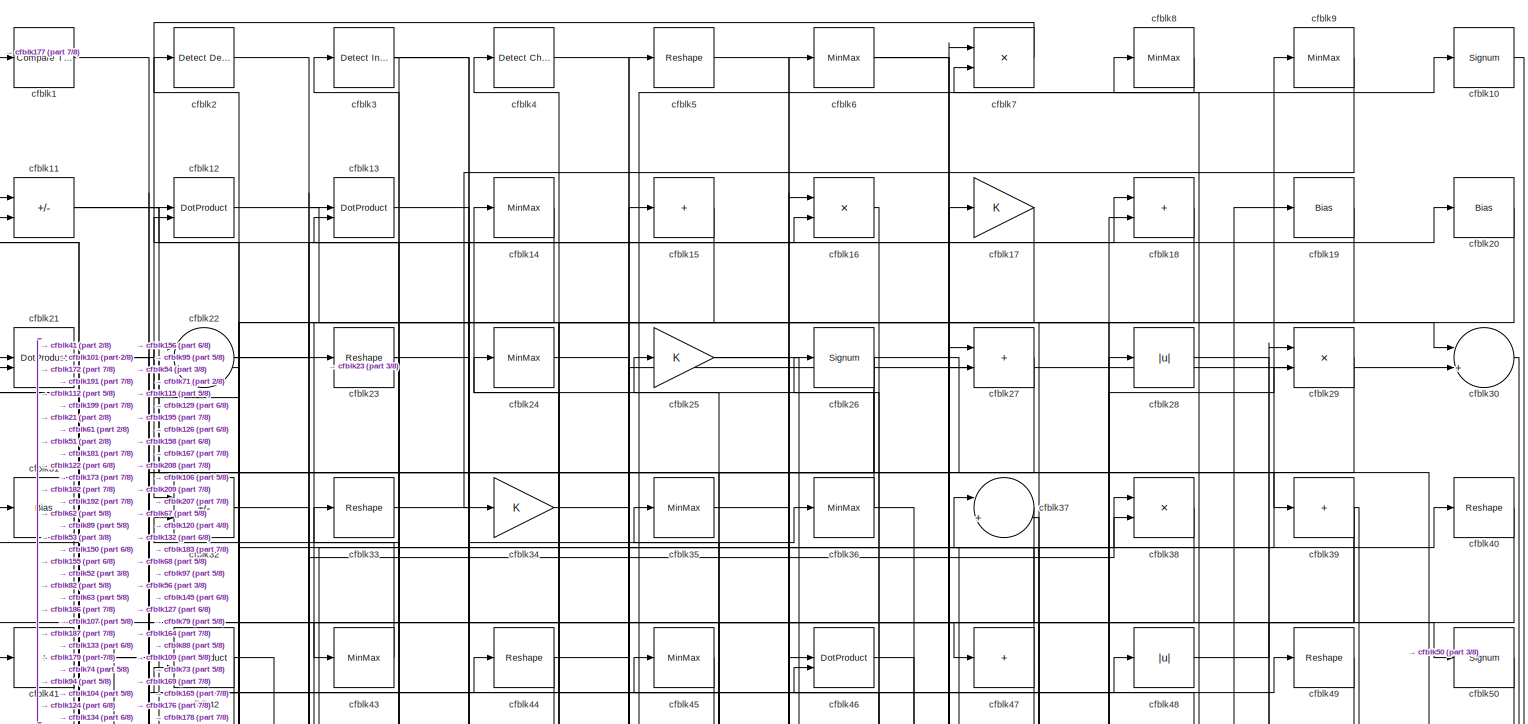
[diagram: root canvas - part 1/8, full width, top band]
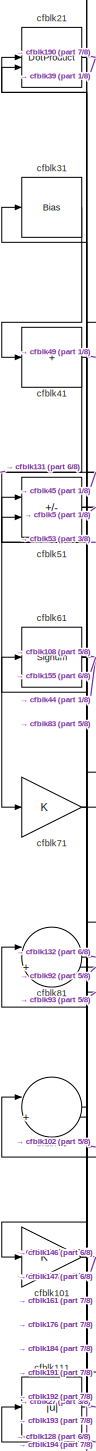
[diagram: root canvas - part 2/8, top left region]
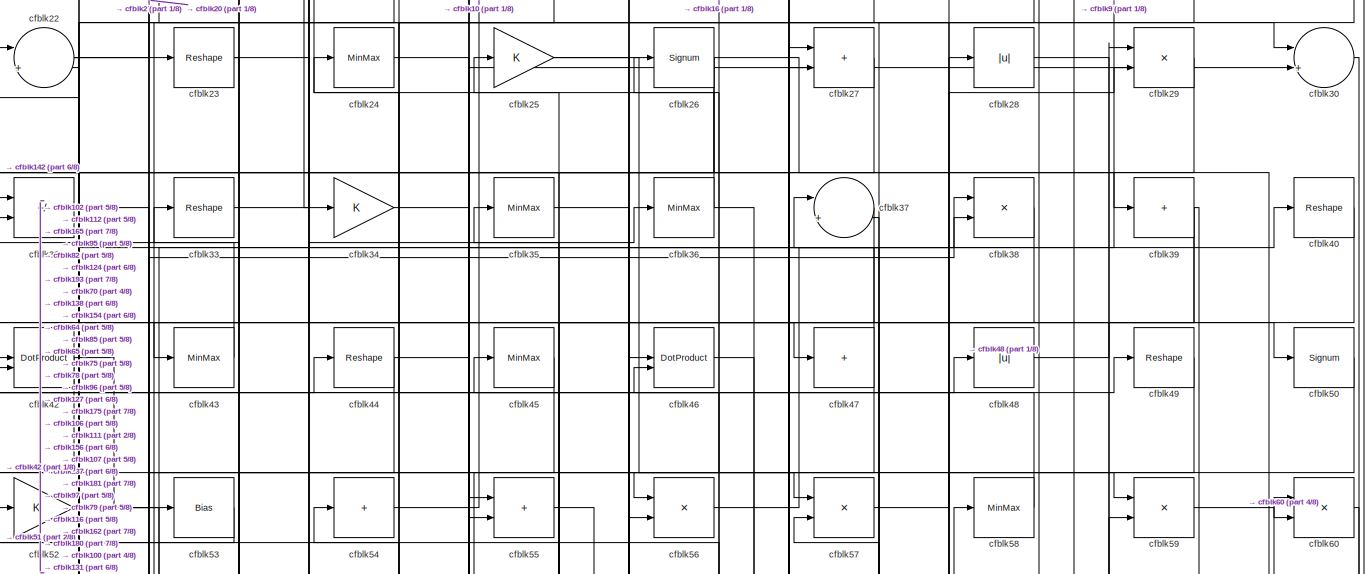
[diagram: root canvas - part 3/8, full width, top band]
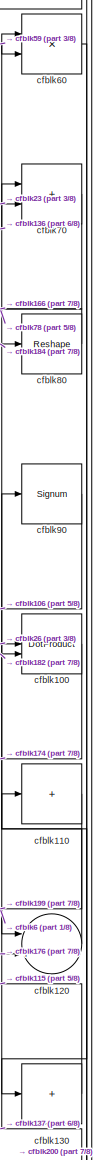
[diagram: root canvas - part 4/8, middle right region]
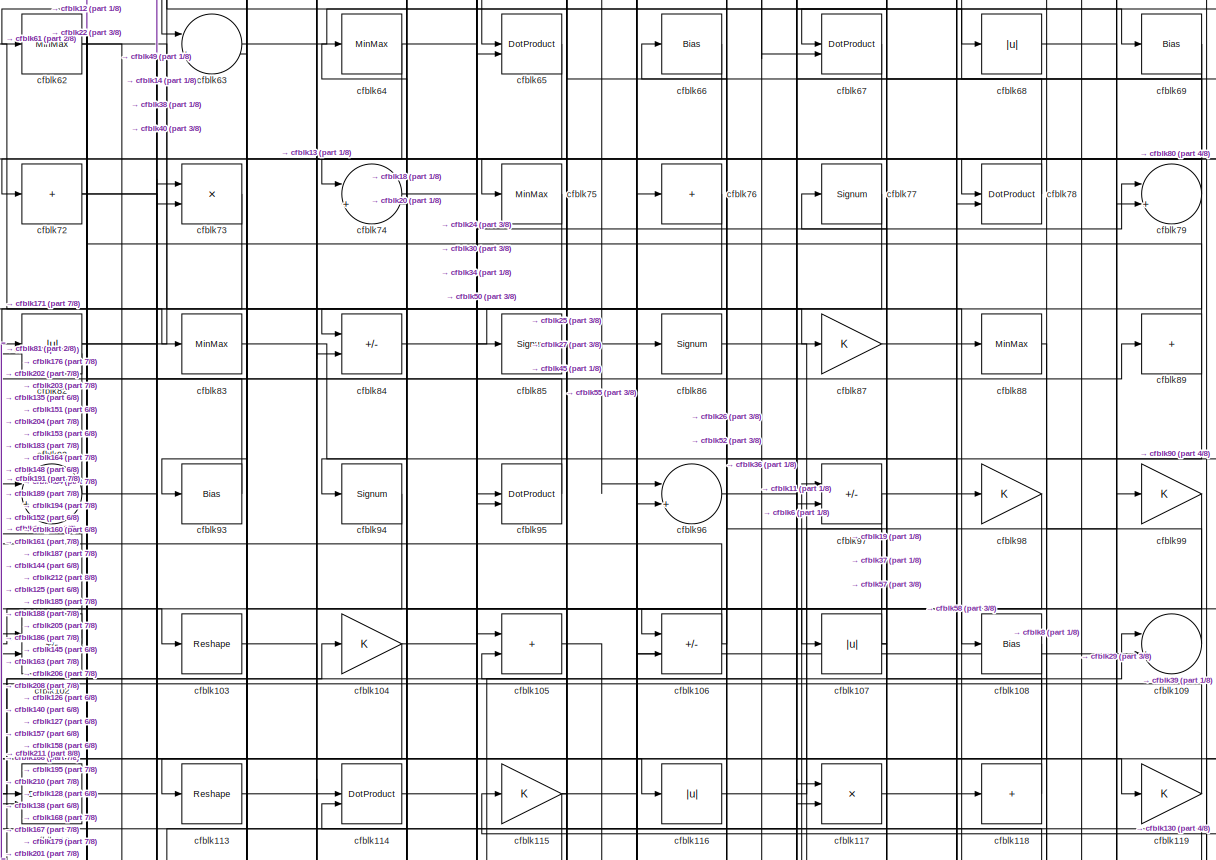
[diagram: root canvas - part 5/8, full width, middle band]
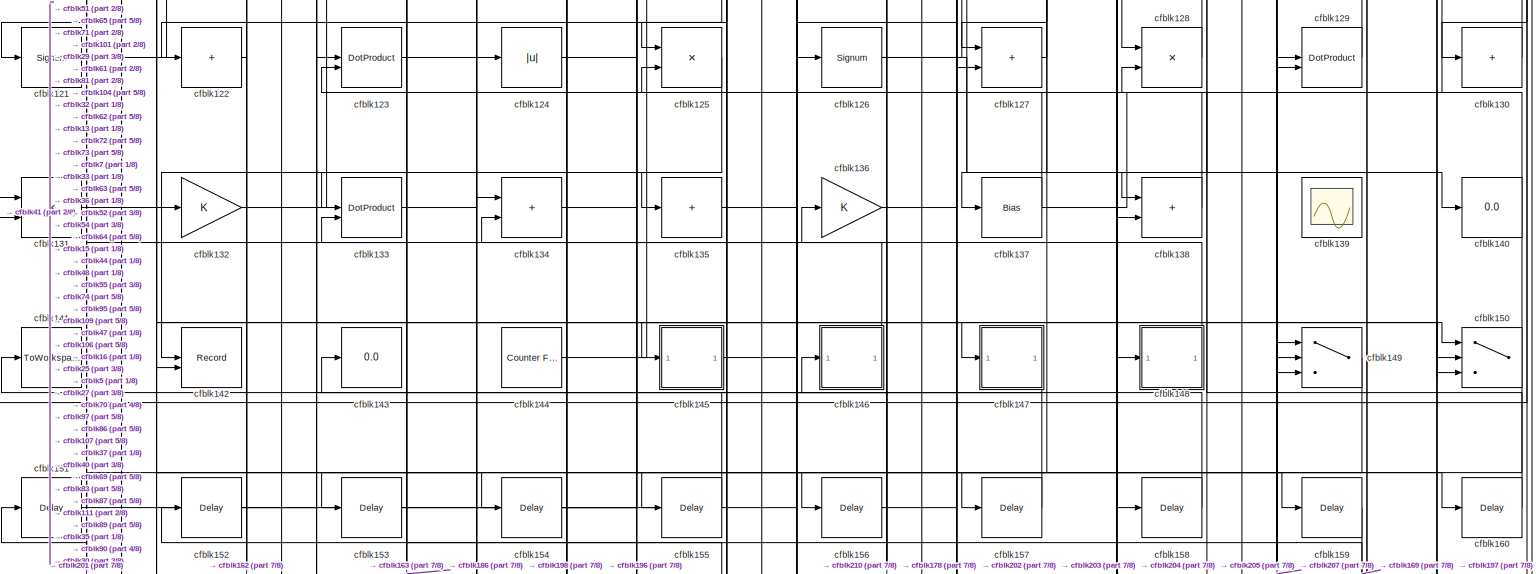
[diagram: root canvas - part 6/8, full width, middle band]
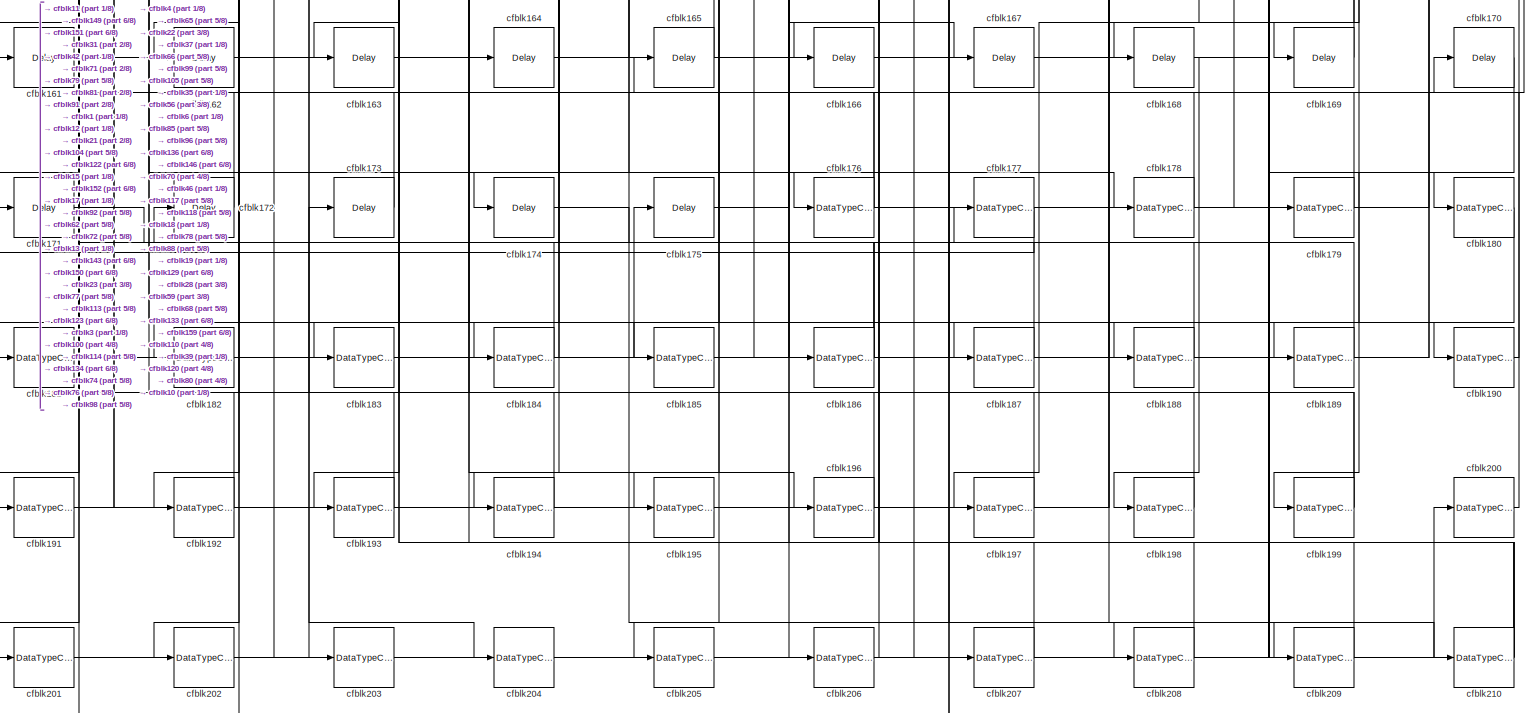
[diagram: root canvas - part 7/8, full width, bottom band]
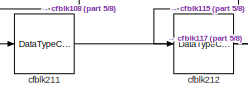
[diagram: root canvas - part 8/8, bottom left region]
MODEL slx_58d6f7afbdde
KIND model
CONFIG AbsTol = auto
CONFIG EnableMultiTasking = off
CONFIG FixedStep = auto
CONFIG MaxStep = auto
CONFIG MinStep = auto
CONFIG RelTol = 1e-3
CONFIG SampleTimeConstraint = Unconstrained
CONFIG SolverName = VariableStepAuto
CONFIG StartTime = 0.0
CONFIG StopTime = 10.0
BLOCK [Reference] cfblk1  REF=hdlsllib/Logic and Bit
Operations/Compare
To Constant
  SourceBlock = hdlsllib/Logic and Bit\nOperations/Compare\nTo Constant
  SourceType = Compare To Constant
BLOCK [Signum] cfblk10
BLOCK [DotProduct] cfblk100
  OutDataTypeStr = Inherit: Inherit via internal rule
BLOCK [Gain] cfblk101
BLOCK [Sum] cfblk102
  IconShape = rectangular
  Inputs = +-
BLOCK [Reshape] cfblk103
BLOCK [Gain] cfblk104
BLOCK [Sum] cfblk105
  IconShape = rectangular
BLOCK [Sum] cfblk106
  IconShape = rectangular
  Inputs = +-
BLOCK [Abs] cfblk107
  SaturateOnIntegerOverflow = off
BLOCK [Bias] cfblk108
  Bias = 0.0
  SaturateOnIntegerOverflow = off
BLOCK [Sum] cfblk109
  Inputs = |++
BLOCK [Sum] cfblk11
  IconShape = rectangular
  Inputs = +-
BLOCK [Sum] cfblk110
  IconShape = rectangular
  Inputs = +
BLOCK [Abs] cfblk111
  SaturateOnIntegerOverflow = off
BLOCK [DotProduct] cfblk112
  OutDataTypeStr = Inherit: Inherit via internal rule
BLOCK [Reshape] cfblk113
BLOCK [DotProduct] cfblk114
  OutDataTypeStr = Inherit: Inherit via internal rule
BLOCK [Gain] cfblk115
BLOCK [Abs] cfblk116
  SaturateOnIntegerOverflow = off
BLOCK [Product] cfblk117
  Inputs = */
  RndMeth = Zero
  SaturateOnIntegerOverflow = on
BLOCK [Sum] cfblk118
  IconShape = rectangular
  Inputs = +
BLOCK [Gain] cfblk119
BLOCK [DotProduct] cfblk12
  OutDataTypeStr = Inherit: Inherit via internal rule
BLOCK [Sum] cfblk120
  Inputs = |++
BLOCK [Signum] cfblk121
BLOCK [Sum] cfblk122
  IconShape = rectangular
  Inputs = +
BLOCK [DotProduct] cfblk123
  OutDataTypeStr = Inherit: Inherit via internal rule
BLOCK [Abs] cfblk124
  SaturateOnIntegerOverflow = off
BLOCK [Product] cfblk125
  Inputs = */
  RndMeth = Zero
  SaturateOnIntegerOverflow = on
BLOCK [Signum] cfblk126
BLOCK [Sum] cfblk127
  IconShape = rectangular
BLOCK [Product] cfblk128
  Inputs = */
  RndMeth = Zero
  SaturateOnIntegerOverflow = on
BLOCK [DotProduct] cfblk129
  OutDataTypeStr = Inherit: Inherit via internal rule
BLOCK [DotProduct] cfblk13
  OutDataTypeStr = Inherit: Inherit via internal rule
BLOCK [Sum] cfblk130
  IconShape = rectangular
  Inputs = +
BLOCK [Product] cfblk131
  Inputs = */
  RndMeth = Zero
  SaturateOnIntegerOverflow = on
BLOCK [Gain] cfblk132
BLOCK [DotProduct] cfblk133
  OutDataTypeStr = Inherit: Inherit via internal rule
BLOCK [Sum] cfblk134
  IconShape = rectangular
BLOCK [Sum] cfblk135
  IconShape = rectangular
  Inputs = +
BLOCK [Gain] cfblk136
BLOCK [Bias] cfblk137
  Bias = 0.0
  SaturateOnIntegerOverflow = off
BLOCK [Sum] cfblk138
  IconShape = rectangular
BLOCK [Scope] cfblk139
  Floating = on
  NumInputPorts = 1
  ScopeSpecificationString = Simulink.scopes.TimeScopeBlockCfg('CurrentConfiguration', extmgr.ConfigurationSet(extmgr.Configuration('Core','General UI',true,'FigureColor',[0.156862745098039 0.156862745098039 0.156862745098039]),extmgr.Configuration('Core','Source UI',true),extmgr.Configuration('Sources','WiredSimulink',true,'DataLoggingVariableName','ScopeData1','DataLoggingSaveFormat','StructureWithTime','DataLoggingLimitDat...<+2713ch>
BLOCK [MinMax] cfblk14
BLOCK [Display] cfblk140
  Decimation = 1
BLOCK [ToWorkspace] cfblk141
  MaxDataPoints = inf
  SampleTime = -1
  SaveFormat = Timeseries
  VariableName = simout
BLOCK [Record] cfblk142
  CompatibilityTag = XY
  FileSettingsInternal = {"entries":[{"content":{"excelSettings":{"content":{},"type":"Streamout.ExcelSettings"}},"type":"Streamout.FileSettingStorage","uuid":""}],"packageUris":["http:\/\/schema.mathworks.com\/mf0\/streamout_blocks\/R2020a"],"version":"1.0"}
  Layout = [1 1]
  SignalsInternal = {"entries":[{"content":{"signals":[{"content":{"blockPath":[],"dimensions":[1],"domain":"","lineColor":"#a2142f","plots":[1],"port":1,"signalID":6656,"signalName":"XY Graph:1"},"type":"RecordBlkView.Signal","uuid":""},{"content":{"blockPath":[],"dimensions":[1],"domain":"","lineColor":"#139fff","plots":[1],"port":2,"signalID":6659,"signalName":"XY Graph:2"},"type":"RecordBlkView.Signal","uuid":""}...<+146ch>
  VisualizationBindings = {"xyplotplugin":{"info":[{"series":[{"bindingParametersList":[{"parameter":"X-Axis","signalID":6656,"signalName":"XY Graph:1"},{"parameter":"Y-Axis","signalID":6659,"signalName":"XY Graph:2"}],"seriesID":13052}],"subplotID":1}]}}
  st = -1
BLOCK [Display] cfblk143
  Decimation = 1
BLOCK [Reference] cfblk144  REF=hdlsllib/Sources/Counter
Free-Running
  SourceBlock = hdlsllib/Sources/Counter\nFree-Running
  SourceType = Counter Free-Running
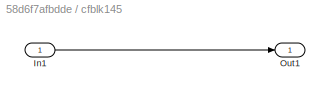
BLOCK [SubSystem] cfblk145
  LibrarySourceBlock = hdlsllib/Ports &\nSubsystems/Subsystem
BLOCK [Inport] cfblk145/In1
BLOCK [Outport] cfblk145/Out1
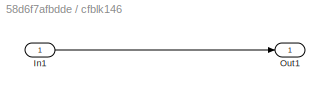
BLOCK [SubSystem] cfblk146
  LibrarySourceBlock = hdlsllib/Ports &\nSubsystems/Subsystem
BLOCK [Inport] cfblk146/In1
BLOCK [Outport] cfblk146/Out1
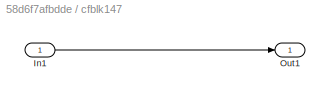
BLOCK [SubSystem] cfblk147
  LibrarySourceBlock = hdlsllib/Ports &\nSubsystems/Subsystem
BLOCK [Inport] cfblk147/In1
BLOCK [Outport] cfblk147/Out1
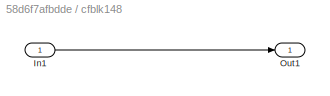
BLOCK [SubSystem] cfblk148
  LibrarySourceBlock = hdlsllib/Ports &\nSubsystems/Subsystem
BLOCK [Inport] cfblk148/In1
BLOCK [Outport] cfblk148/Out1
BLOCK [Switch] cfblk149
  InputSameDT = off
  SaturateOnIntegerOverflow = off
BLOCK [Sum] cfblk15
  IconShape = rectangular
  Inputs = +
BLOCK [Switch] cfblk150
  InputSameDT = off
  SaturateOnIntegerOverflow = off
BLOCK [Delay] cfblk151
  InputPortMap = u0
  SampleTime = 1
BLOCK [Delay] cfblk152
  InputPortMap = u0
  SampleTime = 1
BLOCK [Delay] cfblk153
  InputPortMap = u0
  SampleTime = 1
BLOCK [Delay] cfblk154
  InputPortMap = u0
  SampleTime = 1
BLOCK [Delay] cfblk155
  InputPortMap = u0
  SampleTime = 1
BLOCK [Delay] cfblk156
  InputPortMap = u0
  SampleTime = 1
BLOCK [Delay] cfblk157
  InputPortMap = u0
  SampleTime = 1
BLOCK [Delay] cfblk158
  InputPortMap = u0
  SampleTime = 1
BLOCK [Delay] cfblk159
  InputPortMap = u0
  SampleTime = 1
BLOCK [Product] cfblk16
  Inputs = */
  RndMeth = Zero
  SaturateOnIntegerOverflow = on
BLOCK [Delay] cfblk160
  InputPortMap = u0
  SampleTime = 1
BLOCK [Delay] cfblk161
  InputPortMap = u0
  SampleTime = 1
BLOCK [Delay] cfblk162
  InputPortMap = u0
  SampleTime = 1
BLOCK [Delay] cfblk163
  InputPortMap = u0
  SampleTime = 1
BLOCK [Delay] cfblk164
  InputPortMap = u0
  SampleTime = 1
BLOCK [Delay] cfblk165
  InputPortMap = u0
  SampleTime = 1
BLOCK [Delay] cfblk166
  InputPortMap = u0
  SampleTime = 1
BLOCK [Delay] cfblk167
  InputPortMap = u0
  SampleTime = 1
BLOCK [Delay] cfblk168
  InputPortMap = u0
  SampleTime = 1
BLOCK [Delay] cfblk169
  InputPortMap = u0
  SampleTime = 1
BLOCK [Gain] cfblk17
BLOCK [Delay] cfblk170
  InputPortMap = u0
  SampleTime = 1
BLOCK [Delay] cfblk171
  InputPortMap = u0
  SampleTime = 1
BLOCK [Delay] cfblk172
  InputPortMap = u0
  SampleTime = 1
BLOCK [Delay] cfblk173
  InputPortMap = u0
  SampleTime = 1
BLOCK [Delay] cfblk174
  InputPortMap = u0
  SampleTime = 1
BLOCK [Delay] cfblk175
  InputPortMap = u0
  SampleTime = 1
BLOCK [DataTypeConversion] cfblk176
  RndMeth = Floor
  SaturateOnIntegerOverflow = off
BLOCK [DataTypeConversion] cfblk177
  OutDataTypeStr = uint8
  RndMeth = Floor
  SaturateOnIntegerOverflow = off
BLOCK [DataTypeConversion] cfblk178
  RndMeth = Floor
  SaturateOnIntegerOverflow = off
BLOCK [DataTypeConversion] cfblk179
  OutDataTypeStr = uint8
  RndMeth = Floor
  SaturateOnIntegerOverflow = off
BLOCK [Sum] cfblk18
  IconShape = rectangular
BLOCK [DataTypeConversion] cfblk180
  OutDataTypeStr = uint8
  RndMeth = Floor
  SaturateOnIntegerOverflow = off
BLOCK [DataTypeConversion] cfblk181
  OutDataTypeStr = uint8
  RndMeth = Floor
  SaturateOnIntegerOverflow = off
BLOCK [DataTypeConversion] cfblk182
  RndMeth = Floor
  SaturateOnIntegerOverflow = off
BLOCK [DataTypeConversion] cfblk183
  OutDataTypeStr = uint8
  RndMeth = Floor
  SaturateOnIntegerOverflow = off
BLOCK [DataTypeConversion] cfblk184
  RndMeth = Floor
  SaturateOnIntegerOverflow = off
BLOCK [DataTypeConversion] cfblk185
  OutDataTypeStr = uint8
  RndMeth = Floor
  SaturateOnIntegerOverflow = off
BLOCK [DataTypeConversion] cfblk186
  RndMeth = Floor
  SaturateOnIntegerOverflow = off
BLOCK [DataTypeConversion] cfblk187
  OutDataTypeStr = uint8
  RndMeth = Floor
  SaturateOnIntegerOverflow = off
BLOCK [DataTypeConversion] cfblk188
  OutDataTypeStr = uint8
  RndMeth = Floor
  SaturateOnIntegerOverflow = off
BLOCK [DataTypeConversion] cfblk189
  OutDataTypeStr = uint8
  RndMeth = Floor
  SaturateOnIntegerOverflow = off
BLOCK [Bias] cfblk19
  Bias = 0.0
  SaturateOnIntegerOverflow = off
BLOCK [DataTypeConversion] cfblk190
  OutDataTypeStr = uint8
  RndMeth = Floor
  SaturateOnIntegerOverflow = off
BLOCK [DataTypeConversion] cfblk191
  RndMeth = Floor
  SaturateOnIntegerOverflow = off
BLOCK [DataTypeConversion] cfblk192
  OutDataTypeStr = uint8
  RndMeth = Floor
  SaturateOnIntegerOverflow = off
BLOCK [DataTypeConversion] cfblk193
  OutDataTypeStr = uint8
  RndMeth = Floor
  SaturateOnIntegerOverflow = off
BLOCK [DataTypeConversion] cfblk194
  OutDataTypeStr = uint8
  RndMeth = Floor
  SaturateOnIntegerOverflow = off
BLOCK [DataTypeConversion] cfblk195
  OutDataTypeStr = uint8
  RndMeth = Floor
  SaturateOnIntegerOverflow = off
BLOCK [DataTypeConversion] cfblk196
  OutDataTypeStr = uint8
  RndMeth = Floor
  SaturateOnIntegerOverflow = off
BLOCK [DataTypeConversion] cfblk197
  OutDataTypeStr = uint8
  RndMeth = Floor
  SaturateOnIntegerOverflow = off
BLOCK [DataTypeConversion] cfblk198
  OutDataTypeStr = uint8
  RndMeth = Floor
  SaturateOnIntegerOverflow = off
BLOCK [DataTypeConversion] cfblk199
  RndMeth = Floor
  SaturateOnIntegerOverflow = off
BLOCK [Reference] cfblk2  REF=simulink/Logic and Bit
Operations/Detect
Decrease
  LibrarySourceBlock = hdlsllib/Logic and Bit\nOperations/Detect\nDecrease
  SourceBlock = simulink/Logic and Bit\nOperations/Detect\nDecrease
  SourceType = Detect Decrease
BLOCK [Bias] cfblk20
  Bias = 0.0
  SaturateOnIntegerOverflow = off
BLOCK [DataTypeConversion] cfblk200
  OutDataTypeStr = uint8
  RndMeth = Floor
  SaturateOnIntegerOverflow = off
BLOCK [DataTypeConversion] cfblk201
  RndMeth = Floor
  SaturateOnIntegerOverflow = off
BLOCK [DataTypeConversion] cfblk202
  OutDataTypeStr = uint8
  RndMeth = Floor
  SaturateOnIntegerOverflow = off
BLOCK [DataTypeConversion] cfblk203
  OutDataTypeStr = uint8
  RndMeth = Floor
  SaturateOnIntegerOverflow = off
BLOCK [DataTypeConversion] cfblk204
  OutDataTypeStr = uint8
  RndMeth = Floor
  SaturateOnIntegerOverflow = off
BLOCK [DataTypeConversion] cfblk205
  OutDataTypeStr = uint8
  RndMeth = Floor
  SaturateOnIntegerOverflow = off
BLOCK [DataTypeConversion] cfblk206
  OutDataTypeStr = uint8
  RndMeth = Floor
  SaturateOnIntegerOverflow = off
BLOCK [DataTypeConversion] cfblk207
  RndMeth = Floor
  SaturateOnIntegerOverflow = off
BLOCK [DataTypeConversion] cfblk208
  OutDataTypeStr = uint8
  RndMeth = Floor
  SaturateOnIntegerOverflow = off
BLOCK [DataTypeConversion] cfblk209
  OutDataTypeStr = uint8
  RndMeth = Floor
  SaturateOnIntegerOverflow = off
BLOCK [DotProduct] cfblk21
  OutDataTypeStr = Inherit: Inherit via internal rule
BLOCK [DataTypeConversion] cfblk210
  RndMeth = Floor
  SaturateOnIntegerOverflow = off
BLOCK [DataTypeConversion] cfblk211
  OutDataTypeStr = uint8
  RndMeth = Floor
  SaturateOnIntegerOverflow = off
BLOCK [DataTypeConversion] cfblk212
  OutDataTypeStr = uint8
  RndMeth = Floor
  SaturateOnIntegerOverflow = off
BLOCK [Sum] cfblk22
  Inputs = |++
BLOCK [Reshape] cfblk23
BLOCK [MinMax] cfblk24
BLOCK [Gain] cfblk25
BLOCK [Signum] cfblk26
BLOCK [Sum] cfblk27
  IconShape = rectangular
BLOCK [Abs] cfblk28
  SaturateOnIntegerOverflow = off
BLOCK [Product] cfblk29
  Inputs = */
  RndMeth = Zero
  SaturateOnIntegerOverflow = on
BLOCK [Reference] cfblk3  REF=simulink/Logic and Bit
Operations/Detect
Increase
  LibrarySourceBlock = hdlsllib/Logic and Bit\nOperations/Detect\nIncrease
  SourceBlock = simulink/Logic and Bit\nOperations/Detect\nIncrease
  SourceType = Detect Increase
BLOCK [Sum] cfblk30
  Inputs = |++
BLOCK [Bias] cfblk31
  Bias = 0.0
  SaturateOnIntegerOverflow = off
BLOCK [Sum] cfblk32
  IconShape = rectangular
  Inputs = +-
BLOCK [Reshape] cfblk33
BLOCK [Gain] cfblk34
BLOCK [MinMax] cfblk35
BLOCK [MinMax] cfblk36
BLOCK [Sum] cfblk37
  Inputs = |++
BLOCK [Product] cfblk38
  Inputs = */
  RndMeth = Zero
  SaturateOnIntegerOverflow = on
BLOCK [Sum] cfblk39
  IconShape = rectangular
  Inputs = +
BLOCK [Reference] cfblk4  REF=simulink/Logic and Bit
Operations/Detect
Change
  LibrarySourceBlock = hdlsllib/Logic and Bit\nOperations/Detect\nChange
  SourceBlock = simulink/Logic and Bit\nOperations/Detect\nChange
  SourceType = Detect Change
BLOCK [Reshape] cfblk40
BLOCK [Sum] cfblk41
  IconShape = rectangular
  Inputs = +
BLOCK [DotProduct] cfblk42
  OutDataTypeStr = Inherit: Inherit via internal rule
BLOCK [MinMax] cfblk43
BLOCK [Reshape] cfblk44
BLOCK [MinMax] cfblk45
BLOCK [DotProduct] cfblk46
  OutDataTypeStr = Inherit: Inherit via internal rule
BLOCK [Sum] cfblk47
  IconShape = rectangular
  Inputs = +
BLOCK [Abs] cfblk48
  SaturateOnIntegerOverflow = off
BLOCK [Reshape] cfblk49
BLOCK [Reshape] cfblk5
BLOCK [Signum] cfblk50
BLOCK [Sum] cfblk51
  IconShape = rectangular
  Inputs = +-
BLOCK [Gain] cfblk52
BLOCK [Bias] cfblk53
  Bias = 0.0
  SaturateOnIntegerOverflow = off
BLOCK [Sum] cfblk54
  IconShape = rectangular
  Inputs = +
BLOCK [Sum] cfblk55
  IconShape = rectangular
BLOCK [Product] cfblk56
  Inputs = */
  RndMeth = Zero
  SaturateOnIntegerOverflow = on
BLOCK [Product] cfblk57
  Inputs = */
  RndMeth = Zero
  SaturateOnIntegerOverflow = on
BLOCK [MinMax] cfblk58
BLOCK [Product] cfblk59
  Inputs = */
  RndMeth = Zero
  SaturateOnIntegerOverflow = on
BLOCK [MinMax] cfblk6
BLOCK [Product] cfblk60
  Inputs = */
  RndMeth = Zero
  SaturateOnIntegerOverflow = on
BLOCK [Signum] cfblk61
BLOCK [MinMax] cfblk62
BLOCK [Sum] cfblk63
  Inputs = |++
BLOCK [MinMax] cfblk64
BLOCK [DotProduct] cfblk65
  OutDataTypeStr = Inherit: Inherit via internal rule
BLOCK [Bias] cfblk66
  Bias = 0.0
  SaturateOnIntegerOverflow = off
BLOCK [DotProduct] cfblk67
  OutDataTypeStr = Inherit: Inherit via internal rule
BLOCK [Abs] cfblk68
  SaturateOnIntegerOverflow = off
BLOCK [Bias] cfblk69
  Bias = 0.0
  SaturateOnIntegerOverflow = off
BLOCK [Product] cfblk7
  Inputs = */
  RndMeth = Zero
  SaturateOnIntegerOverflow = on
BLOCK [Sum] cfblk70
  IconShape = rectangular
BLOCK [Gain] cfblk71
BLOCK [Sum] cfblk72
  IconShape = rectangular
  Inputs = +
BLOCK [Product] cfblk73
  Inputs = */
  RndMeth = Zero
  SaturateOnIntegerOverflow = on
BLOCK [Sum] cfblk74
  Inputs = |++
BLOCK [MinMax] cfblk75
BLOCK [Sum] cfblk76
  IconShape = rectangular
  Inputs = +
BLOCK [Signum] cfblk77
BLOCK [DotProduct] cfblk78
  OutDataTypeStr = Inherit: Inherit via internal rule
BLOCK [Sum] cfblk79
  Inputs = |++
BLOCK [MinMax] cfblk8
BLOCK [Reshape] cfblk80
BLOCK [Sum] cfblk81
  Inputs = |++
BLOCK [Abs] cfblk82
  SaturateOnIntegerOverflow = off
BLOCK [MinMax] cfblk83
BLOCK [Sum] cfblk84
  IconShape = rectangular
  Inputs = +-
BLOCK [Signum] cfblk85
BLOCK [Signum] cfblk86
BLOCK [Gain] cfblk87
BLOCK [MinMax] cfblk88
BLOCK [Sum] cfblk89
  IconShape = rectangular
  Inputs = +
BLOCK [MinMax] cfblk9
BLOCK [Signum] cfblk90
BLOCK [Sum] cfblk91
  Inputs = |++
BLOCK [Sum] cfblk92
  Inputs = |++
BLOCK [Bias] cfblk93
  Bias = 0.0
  SaturateOnIntegerOverflow = off
BLOCK [Signum] cfblk94
BLOCK [DotProduct] cfblk95
  OutDataTypeStr = Inherit: Inherit via internal rule
BLOCK [Sum] cfblk96
  Inputs = |++
BLOCK [Sum] cfblk97
  IconShape = rectangular
  Inputs = +-
BLOCK [Gain] cfblk98
BLOCK [Gain] cfblk99
LINE cfblk100:1 -> cfblk174:1
NET cfblk101:1 -> cfblk103:1, cfblk150:2
LINE cfblk102:1 -> cfblk21:1
LINE cfblk103:1 -> cfblk116:1
NET cfblk104:1 -> cfblk202:1, cfblk38:1
LINE cfblk105:1 -> cfblk186:1
NET cfblk106:1 -> cfblk11:1, cfblk26:1
NET cfblk107:1 -> cfblk127:1, cfblk52:1, cfblk57:2
LINE cfblk108:1 -> cfblk211:1
LINE cfblk109:1 -> cfblk8:1
LINE cfblk10:1 -> cfblk165:1
LINE cfblk110:1 -> cfblk199:1
LINE cfblk111:1 -> cfblk27:2
LINE cfblk112:1 -> cfblk89:1
LINE cfblk113:1 -> cfblk164:1
LINE cfblk114:1 -> cfblk79:1
NET cfblk115:1 -> cfblk109:2, cfblk212:1, cfblk45:1
LINE cfblk116:1 -> cfblk29:1
LINE cfblk117:1 -> cfblk210:1
LINE cfblk118:1 -> cfblk77:1
LINE cfblk119:1 -> cfblk102:1
NET cfblk11:1 -> cfblk16:2, cfblk97:2
LINE cfblk120:1 -> cfblk60:1
LINE cfblk121:1 -> cfblk104:1
LINE cfblk122:1 -> cfblk162:1
LINE cfblk123:1 -> cfblk196:1
LINE cfblk124:1 -> cfblk15:1
LINE cfblk125:1 -> cfblk142:1
NET cfblk126:1 -> cfblk138:2, cfblk97:1
LINE cfblk127:1 -> cfblk37:1
LINE cfblk128:1 -> cfblk111:1
LINE cfblk129:1 -> cfblk35:1
LINE cfblk12:1 -> cfblk88:1
LINE cfblk130:1 -> cfblk115:1
LINE cfblk131:1 -> cfblk154:1
LINE cfblk132:1 -> cfblk7:1
LINE cfblk133:1 -> cfblk36:1
LINE cfblk134:1 -> cfblk48:1
LINE cfblk135:1 -> cfblk159:1
LINE cfblk136:1 -> cfblk70:1
NET cfblk137:1 -> cfblk125:2, cfblk90:1
LINE cfblk138:1 -> cfblk54:1
LINE cfblk13:1 -> cfblk107:1
LINE cfblk144:1 -> cfblk109:1
LINE cfblk145/In1:1 -> cfblk145/Out1:1
LINE cfblk145:1 -> cfblk86:1
LINE cfblk146/In1:1 -> cfblk146/Out1:1
LINE cfblk146:1 -> cfblk51:1
LINE cfblk147/In1:1 -> cfblk147/Out1:1
LINE cfblk147:1 -> cfblk141:1
LINE cfblk148/In1:1 -> cfblk148/Out1:1
LINE cfblk148:1 -> cfblk64:1
LINE cfblk149:1 -> cfblk201:1
LINE cfblk14:1 -> cfblk63:1
NET cfblk150:1 -> cfblk163:1, cfblk33:1
LINE cfblk151:1 -> cfblk73:1
LINE cfblk152:1 -> cfblk95:2
LINE cfblk153:1 -> cfblk106:2
LINE cfblk154:1 -> cfblk55:1
LINE cfblk155:1 -> cfblk13:1
LINE cfblk156:1 -> cfblk27:1
LINE cfblk157:1 -> cfblk63:2
LINE cfblk158:1 -> cfblk16:1
LINE cfblk159:1 -> cfblk197:1
LINE cfblk15:1 -> cfblk192:1
LINE cfblk160:1 -> cfblk128:2
LINE cfblk161:1 -> cfblk65:2
LINE cfblk162:1 -> cfblk59:2
LINE cfblk163:1 -> cfblk96:2
LINE cfblk164:1 -> cfblk18:2
LINE cfblk165:1 -> cfblk22:2
LINE cfblk166:1 -> cfblk78:2
LINE cfblk167:1 -> cfblk79:2
LINE cfblk168:1 -> cfblk188:1
LINE cfblk169:1 -> cfblk133:2
LINE cfblk16:1 -> cfblk56:1
LINE cfblk170:1 -> cfblk189:1
LINE cfblk171:1 -> cfblk177:1
LINE cfblk172:1 -> cfblk11:2
LINE cfblk173:1 -> cfblk42:2
LINE cfblk174:1 -> cfblk209:1
LINE cfblk175:1 -> cfblk56:2
NET cfblk176:1 -> cfblk120:2, cfblk31:1, cfblk92:2
LINE cfblk177:1 -> cfblk1:1
NET cfblk178:1 -> cfblk134:2, cfblk19:1
LINE cfblk179:1 -> cfblk4:1
LINE cfblk17:1 -> cfblk182:1
LINE cfblk180:1 -> cfblk198:1
LINE cfblk181:1 -> cfblk28:1
NET cfblk182:1 -> cfblk100:2, cfblk175:1, cfblk6:1
LINE cfblk183:1 -> cfblk17:1
NET cfblk184:1 -> cfblk74:2, cfblk80:1, cfblk81:1
LINE cfblk185:1 -> cfblk76:1
NET cfblk186:1 -> cfblk13:2, cfblk151:1, cfblk152:1
LINE cfblk187:1 -> cfblk105:1
LINE cfblk188:1 -> cfblk105:2
LINE cfblk189:1 -> cfblk114:2
LINE cfblk18:1 -> cfblk94:1
LINE cfblk190:1 -> cfblk170:1
NET cfblk191:1 -> cfblk118:1, cfblk42:1, cfblk92:1
LINE cfblk192:1 -> cfblk91:1
LINE cfblk193:1 -> cfblk91:2
LINE cfblk194:1 -> cfblk21:2
LINE cfblk195:1 -> cfblk98:1
LINE cfblk196:1 -> cfblk134:1
LINE cfblk197:1 -> cfblk123:1
LINE cfblk198:1 -> cfblk123:2
NET cfblk199:1 -> cfblk12:1, cfblk172:1
LINE cfblk19:1 -> cfblk67:1
LINE cfblk1:1 -> cfblk176:1
LINE cfblk200:1 -> cfblk110:1
NET cfblk201:1 -> cfblk173:1, cfblk200:1, cfblk99:1
LINE cfblk202:1 -> cfblk149:1
LINE cfblk203:1 -> cfblk149:2
LINE cfblk204:1 -> cfblk149:3
LINE cfblk205:1 -> cfblk129:1
LINE cfblk206:1 -> cfblk66:1
NET cfblk207:1 -> cfblk129:2, cfblk3:1
LINE cfblk208:1 -> cfblk46:1
LINE cfblk209:1 -> cfblk46:2
LINE cfblk20:1 -> cfblk74:1
NET cfblk210:1 -> cfblk114:1, cfblk136:1, cfblk143:1, cfblk146:1
LINE cfblk211:1 -> cfblk117:1
LINE cfblk212:1 -> cfblk117:2
NET cfblk21:1 -> cfblk190:1, cfblk39:1
NET cfblk22:1 -> cfblk30:1, cfblk55:2
NET cfblk23:1 -> cfblk193:1, cfblk70:2
LINE cfblk24:1 -> cfblk85:1
NET cfblk25:1 -> cfblk127:2, cfblk57:1
NET cfblk26:1 -> cfblk100:1, cfblk102:2, cfblk112:1
LINE cfblk27:1 -> cfblk75:1
LINE cfblk28:1 -> cfblk180:1
LINE cfblk29:1 -> cfblk142:2
LINE cfblk2:1 -> cfblk23:1
LINE cfblk30:1 -> cfblk131:1
LINE cfblk31:1 -> cfblk41:1
NET cfblk32:1 -> cfblk122:1, cfblk150:1
LINE cfblk33:1 -> cfblk18:1
LINE cfblk34:1 -> cfblk95:1
LINE cfblk35:1 -> cfblk167:1
NET cfblk36:1 -> cfblk14:1, cfblk67:2
LINE cfblk37:1 -> cfblk195:1
LINE cfblk38:1 -> cfblk62:1
NET cfblk39:1 -> cfblk101:1, cfblk112:2, cfblk169:1
NET cfblk3:1 -> cfblk187:1, cfblk43:1, cfblk47:1
LINE cfblk40:1 -> cfblk137:1
NET cfblk41:1 -> cfblk131:2, cfblk49:1
NET cfblk42:1 -> cfblk181:1, cfblk53:1
LINE cfblk43:1 -> cfblk32:2
NET cfblk44:1 -> cfblk133:1, cfblk156:1
LINE cfblk45:1 -> cfblk71:1
LINE cfblk46:1 -> cfblk207:1
NET cfblk47:1 -> cfblk145:1, cfblk2:1
LINE cfblk48:1 -> cfblk50:1
LINE cfblk49:1 -> cfblk73:2
LINE cfblk4:1 -> cfblk178:1
LINE cfblk50:1 -> cfblk65:1
NET cfblk51:1 -> cfblk150:3, cfblk5:1
NET cfblk52:1 -> cfblk124:1, cfblk20:1
LINE cfblk53:1 -> cfblk51:2
LINE cfblk54:1 -> cfblk10:1
LINE cfblk55:1 -> cfblk96:1
LINE cfblk56:1 -> cfblk9:1
LINE cfblk57:1 -> cfblk59:1
LINE cfblk58:1 -> cfblk24:1
LINE cfblk59:1 -> cfblk60:2
LINE cfblk5:1 -> cfblk126:1
LINE cfblk60:1 -> cfblk130:1
NET cfblk61:1 -> cfblk108:1, cfblk155:1, cfblk44:1, cfblk83:1
NET cfblk62:1 -> cfblk128:1, cfblk203:1
LINE cfblk63:1 -> cfblk69:1
NET cfblk64:1 -> cfblk153:1, cfblk30:2
LINE cfblk65:1 -> cfblk121:1
LINE cfblk66:1 -> cfblk205:1
LINE cfblk67:1 -> cfblk72:1
LINE cfblk68:1 -> cfblk179:1
NET cfblk69:1 -> cfblk157:1, cfblk84:1, cfblk84:2
NET cfblk6:1 -> cfblk120:1, cfblk68:1
LINE cfblk70:1 -> cfblk166:1
NET cfblk71:1 -> cfblk147:1, cfblk161:1
NET cfblk72:1 -> cfblk135:1, cfblk204:1
LINE cfblk73:1 -> cfblk82:1
LINE cfblk74:1 -> cfblk160:1
LINE cfblk75:1 -> cfblk93:1
LINE cfblk76:1 -> cfblk184:1
LINE cfblk77:1 -> cfblk183:1
LINE cfblk78:1 -> cfblk25:1
NET cfblk79:1 -> cfblk171:1, cfblk37:2, cfblk58:1
LINE cfblk7:1 -> cfblk32:1
LINE cfblk80:1 -> cfblk78:1
LINE cfblk81:1 -> cfblk132:1
NET cfblk82:1 -> cfblk38:2, cfblk40:1
LINE cfblk83:1 -> cfblk148:1
LINE cfblk84:1 -> cfblk87:1
LINE cfblk85:1 -> cfblk206:1
LINE cfblk86:1 -> cfblk140:1
LINE cfblk87:1 -> cfblk158:1
LINE cfblk88:1 -> cfblk168:1
NET cfblk89:1 -> cfblk12:2, cfblk138:1
LINE cfblk8:1 -> cfblk7:2
LINE cfblk90:1 -> cfblk106:1
LINE cfblk91:1 -> cfblk191:1
NET cfblk92:1 -> cfblk119:1, cfblk81:2
LINE cfblk93:1 -> cfblk61:1
LINE cfblk94:1 -> cfblk113:1
LINE cfblk95:1 -> cfblk22:1
LINE cfblk96:1 -> cfblk208:1
NET cfblk97:1 -> cfblk125:1, cfblk29:2
LINE cfblk98:1 -> cfblk194:1
LINE cfblk99:1 -> cfblk185:1
LINE cfblk9:1 -> cfblk34:1
note: NET lines group one-source signal fan-out (src -> all destinations, sorted); 1:1 wires keep LINE
